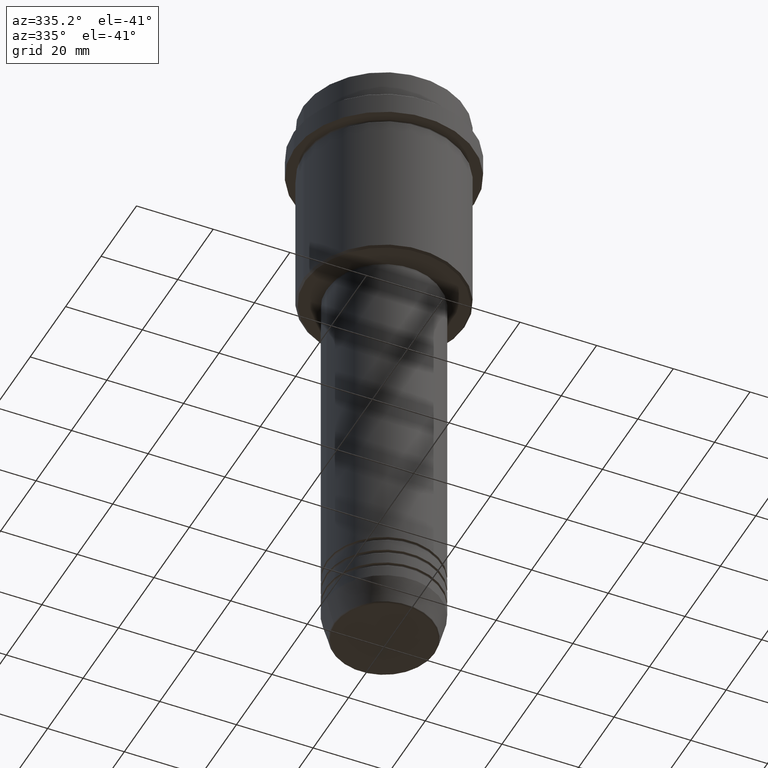
[diagram: clean part render]
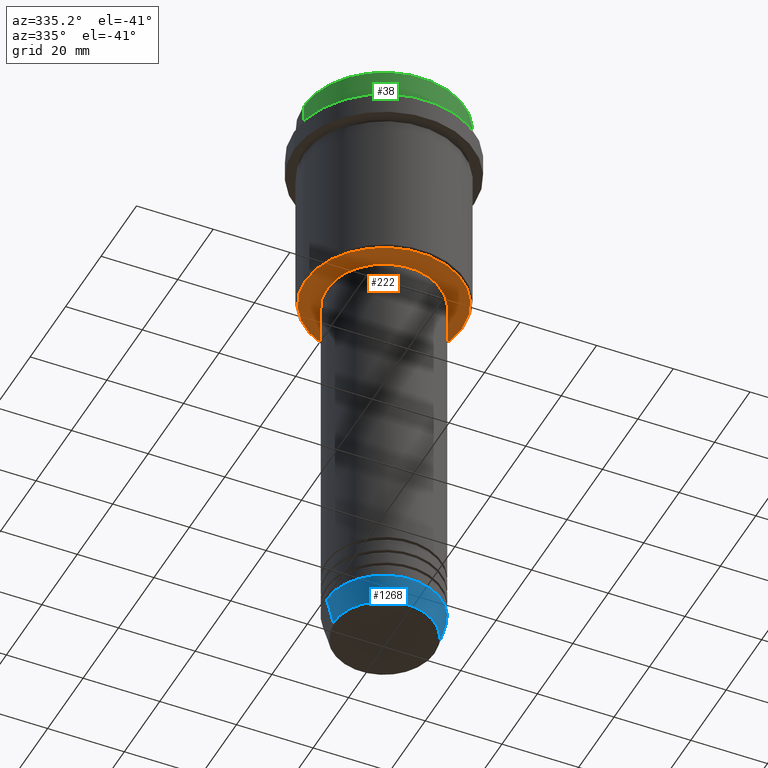
[diagram: same view with three faces highlighted in distinct colors, each labeled with its STEP entity id]
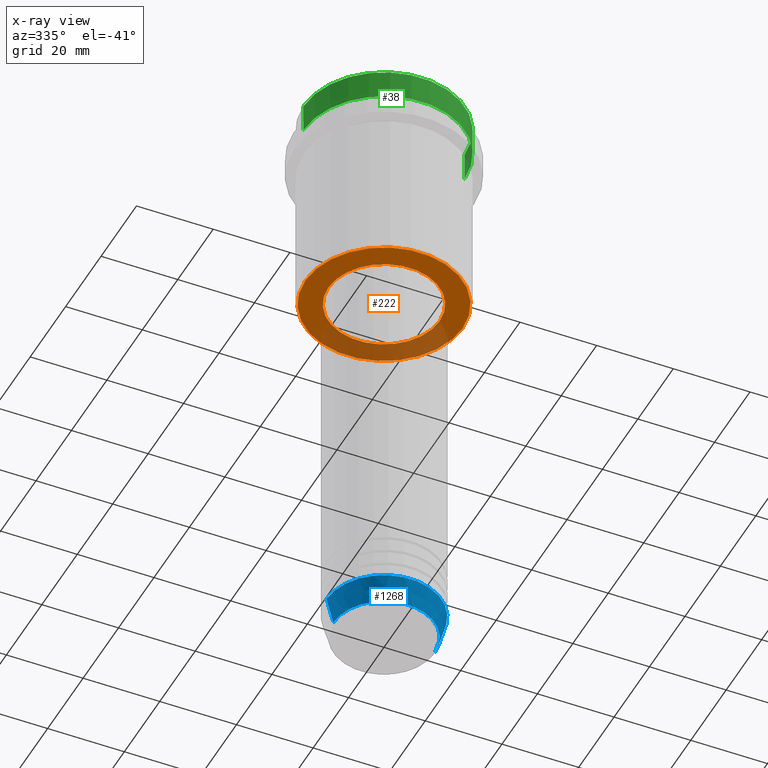
[diagram: x-ray of the same camera — body ghosted, the three highlighted faces saturated]
A machine part, auxiliary view with three faces highlighted in distinct colors.
The next image is the same camera in x-ray (body ghosted, the three faces saturated) — at least one of them is partly hidden behind the body in this view.
Their STEP definitions:

[orange] entity #222 — the highlighted planar face has unit normal (0, 0, -1).
#44 = CARTESIAN_POINT ( 'NONE',  ( 20.50000000000003197, 0.000000000000000000, -54.99999999999999289 ) ) ;
#108 = DIRECTION ( 'NONE',  ( -1.000000000000000000, 0.000000000000000000, 0.000000000000000000 ) ) ;
#132 = FACE_OUTER_BOUND ( 'NONE', #1359, .T. ) ;
#144 = FACE_BOUND ( 'NONE', #1095, .T. ) ;
#156 = EDGE_CURVE ( 'NONE', #475, #1151, #294, .T. ) ;
#207 = CIRCLE ( 'NONE', #748, 20.50000000000003197 ) ;
#222 = ADVANCED_FACE ( 'NONE', ( #132, #144 ), #568, .T. ) ;
#246 = DIRECTION ( 'NONE',  ( 1.000000000000000000, 0.000000000000000000, 0.000000000000000000 ) ) ;
#294 = CIRCLE ( 'NONE', #425, 20.50000000000003197 ) ;
#306 = ORIENTED_EDGE ( 'NONE', *, *, #1391, .T. ) ;
#415 = ORIENTED_EDGE ( 'NONE', *, *, #156, .T. ) ;
#425 = AXIS2_PLACEMENT_3D ( 'NONE', #976, #654, #988 ) ;
#437 = CARTESIAN_POINT ( 'NONE',  ( 0.000000000000000000, 0.000000000000000000, -54.99999999999999289 ) ) ;
#475 = VERTEX_POINT ( 'NONE', #1321 ) ;
#479 = CIRCLE ( 'NONE', #776, 14.49999999999999467 ) ;
#490 = ORIENTED_EDGE ( 'NONE', *, *, #539, .T. ) ;
#514 = ORIENTED_EDGE ( 'NONE', *, *, #1366, .T. ) ;
#539 = EDGE_CURVE ( 'NONE', #1151, #475, #207, .T. ) ;
#568 = PLANE ( 'NONE',  #1324 ) ;
#654 = DIRECTION ( 'NONE',  ( 0.000000000000000000, 0.000000000000000000, -1.000000000000000000 ) ) ;
#661 = DIRECTION ( 'NONE',  ( 0.000000000000000000, 0.000000000000000000, -1.000000000000000000 ) ) ;
#665 = AXIS2_PLACEMENT_3D ( 'NONE', #755, #871, #246 ) ;
#748 = AXIS2_PLACEMENT_3D ( 'NONE', #437, #661, #108 ) ;
#755 = CARTESIAN_POINT ( 'NONE',  ( 0.000000000000000000, 0.000000000000000000, -54.99999999999999289 ) ) ;
#776 = AXIS2_PLACEMENT_3D ( 'NONE', #781, #861, #1310 ) ;
#781 = CARTESIAN_POINT ( 'NONE',  ( 0.000000000000000000, 0.000000000000000000, -54.99999999999999289 ) ) ;
#812 = VERTEX_POINT ( 'NONE', #1396 ) ;
#861 = DIRECTION ( 'NONE',  ( -0.000000000000000000, -0.000000000000000000, 1.000000000000000000 ) ) ;
#871 = DIRECTION ( 'NONE',  ( -0.000000000000000000, -0.000000000000000000, 1.000000000000000000 ) ) ;
#942 = VERTEX_POINT ( 'NONE', #1006 ) ;
#976 = CARTESIAN_POINT ( 'NONE',  ( 0.000000000000000000, 0.000000000000000000, -54.99999999999999289 ) ) ;
#988 = DIRECTION ( 'NONE',  ( -1.000000000000000000, 0.000000000000000000, 0.000000000000000000 ) ) ;
#1006 = CARTESIAN_POINT ( 'NONE',  ( 14.49999999999999467, 0.000000000000000000, -54.99999999999999289 ) ) ;
#1095 = EDGE_LOOP ( 'NONE', ( #306, #514 ) ) ;
#1148 = DIRECTION ( 'NONE',  ( 0.000000000000000000, 0.000000000000000000, -1.000000000000000000 ) ) ;
#1151 = VERTEX_POINT ( 'NONE', #44 ) ;
#1227 = DIRECTION ( 'NONE',  ( -1.000000000000000000, 0.000000000000000000, -0.000000000000000000 ) ) ;
#1285 = CIRCLE ( 'NONE', #665, 14.49999999999999467 ) ;
#1310 = DIRECTION ( 'NONE',  ( 1.000000000000000000, 0.000000000000000000, 0.000000000000000000 ) ) ;
#1321 = CARTESIAN_POINT ( 'NONE',  ( -20.50000000000003197, 2.541142108230759846E-15, -54.99999999999999289 ) ) ;
#1324 = AXIS2_PLACEMENT_3D ( 'NONE', #1355, #1148, #1227 ) ;
#1355 = CARTESIAN_POINT ( 'NONE',  ( 0.000000000000000000, 21.00000000000000000, -54.99999999999999289 ) ) ;
#1359 = EDGE_LOOP ( 'NONE', ( #490, #415 ) ) ;
#1366 = EDGE_CURVE ( 'NONE', #812, #942, #479, .T. ) ;
#1391 = EDGE_CURVE ( 'NONE', #942, #812, #1285, .T. ) ;
#1396 = CARTESIAN_POINT ( 'NONE',  ( -14.49999999999999467, 1.775737858763661620E-15, -54.99999999999999289 ) ) ;

[blue] entity #1268 — the highlighted conical surface has half-angle 15 deg.
#93 = CARTESIAN_POINT ( 'NONE',  ( 0.000000000000000000, 0.000000000000000000, -153.0000000000000000 ) ) ;
#107 = CARTESIAN_POINT ( 'NONE',  ( 15.00000000000000000, 0.000000000000000000, -153.0000000000000000 ) ) ;
#112 = CIRCLE ( 'NONE', #747, 13.22365507213719305 ) ;
#177 = DIRECTION ( 'NONE',  ( -0.000000000000000000, -0.000000000000000000, 1.000000000000000000 ) ) ;
#186 = VECTOR ( 'NONE', #537, 1000.000000000000000 ) ;
#247 = ORIENTED_EDGE ( 'NONE', *, *, #266, .F. ) ;
#266 = EDGE_CURVE ( 'NONE', #702, #509, #481, .T. ) ;
#312 = FACE_OUTER_BOUND ( 'NONE', #1385, .T. ) ;
#379 = EDGE_CURVE ( 'NONE', #702, #712, #112, .T. ) ;
#440 = VERTEX_POINT ( 'NONE', #1071 ) ;
#453 = CONICAL_SURFACE ( 'NONE', #941, 15.00000000000000000, 0.2617993877991500740 ) ;
#461 = ORIENTED_EDGE ( 'NONE', *, *, #379, .T. ) ;
#481 = LINE ( 'NONE', #683, #1191 ) ;
#509 = VERTEX_POINT ( 'NONE', #758 ) ;
#537 = DIRECTION ( 'NONE',  ( 0.2588190451025213501, 0.000000000000000000, 0.9659258262890680902 ) ) ;
#683 = CARTESIAN_POINT ( 'NONE',  ( -15.00000000000000000, 1.836970198721029589E-15, -153.0000000000000000 ) ) ;
#702 = VERTEX_POINT ( 'NONE', #1138 ) ;
#712 = VERTEX_POINT ( 'NONE', #1130 ) ;
#724 = ORIENTED_EDGE ( 'NONE', *, *, #848, .F. ) ;
#747 = AXIS2_PLACEMENT_3D ( 'NONE', #1378, #177, #1182 ) ;
#758 = CARTESIAN_POINT ( 'NONE',  ( -15.00000000000000000, 1.836970198721029589E-15, -153.0000000000000000 ) ) ;
#835 = ORIENTED_EDGE ( 'NONE', *, *, #943, .T. ) ;
#841 = CARTESIAN_POINT ( 'NONE',  ( 0.000000000000000000, 0.000000000000000000, -153.0000000000000000 ) ) ;
#848 = EDGE_CURVE ( 'NONE', #509, #440, #1035, .T. ) ;
#880 = LINE ( 'NONE', #107, #186 ) ;
#916 = DIRECTION ( 'NONE',  ( -0.2588190451025213501, 3.169619151431772337E-17, 0.9659258262890680902 ) ) ;
#941 = AXIS2_PLACEMENT_3D ( 'NONE', #93, #947, #1190 ) ;
#943 = EDGE_CURVE ( 'NONE', #712, #440, #880, .T. ) ;
#947 = DIRECTION ( 'NONE',  ( -0.000000000000000000, -0.000000000000000000, 1.000000000000000000 ) ) ;
#953 = DIRECTION ( 'NONE',  ( -0.000000000000000000, -0.000000000000000000, 1.000000000000000000 ) ) ;
#1035 = CIRCLE ( 'NONE', #1076, 15.00000000000000000 ) ;
#1071 = CARTESIAN_POINT ( 'NONE',  ( 15.00000000000000000, 0.000000000000000000, -153.0000000000000000 ) ) ;
#1076 = AXIS2_PLACEMENT_3D ( 'NONE', #841, #953, #1386 ) ;
#1130 = CARTESIAN_POINT ( 'NONE',  ( 13.22365507213719305, 0.000000000000000000, -159.6294095225512137 ) ) ;
#1138 = CARTESIAN_POINT ( 'NONE',  ( -13.22365507213719305, 1.728200442216588583E-15, -159.6294095225512137 ) ) ;
#1182 = DIRECTION ( 'NONE',  ( 1.000000000000000000, 0.000000000000000000, 0.000000000000000000 ) ) ;
#1190 = DIRECTION ( 'NONE',  ( 1.000000000000000000, 0.000000000000000000, 0.000000000000000000 ) ) ;
#1191 = VECTOR ( 'NONE', #916, 1000.000000000000000 ) ;
#1268 = ADVANCED_FACE ( 'NONE', ( #312 ), #453, .T. ) ;
#1378 = CARTESIAN_POINT ( 'NONE',  ( 0.000000000000000000, 0.000000000000000000, -159.6294095225512137 ) ) ;
#1385 = EDGE_LOOP ( 'NONE', ( #247, #461, #835, #724 ) ) ;
#1386 = DIRECTION ( 'NONE',  ( 1.000000000000000000, 0.000000000000000000, 0.000000000000000000 ) ) ;

[green] entity #38 — the highlighted cylindrical surface (partial cylindrical patch) has radius 21 mm, axis along (-0, -0, 1).
#7 = ORIENTED_EDGE ( 'NONE', *, *, #1030, .T. ) ;
#33 = DIRECTION ( 'NONE',  ( 1.000000000000000000, 0.000000000000000000, 0.000000000000000000 ) ) ;
#38 = ADVANCED_FACE ( 'NONE', ( #870 ), #754, .T. ) ;
#78 = DIRECTION ( 'NONE',  ( -0.000000000000000000, -0.000000000000000000, 1.000000000000000000 ) ) ;
#152 = DIRECTION ( 'NONE',  ( -0.000000000000000000, -0.000000000000000000, 1.000000000000000000 ) ) ;
#176 = EDGE_CURVE ( 'NONE', #1070, #1281, #745, .T. ) ;
#202 = CARTESIAN_POINT ( 'NONE',  ( -21.00000000000000000, 2.571758278209441661E-15, 0.000000000000000000 ) ) ;
#240 = DIRECTION ( 'NONE',  ( 0.000000000000000000, 0.000000000000000000, -1.000000000000000000 ) ) ;
#250 = VERTEX_POINT ( 'NONE', #1139 ) ;
#342 = VECTOR ( 'NONE', #992, 1000.000000000000000 ) ;
#392 = CARTESIAN_POINT ( 'NONE',  ( 21.00000000000000000, 0.000000000000000000, -7.999999999999998224 ) ) ;
#411 = LINE ( 'NONE', #202, #1036 ) ;
#476 = CARTESIAN_POINT ( 'NONE',  ( -21.00000000000000000, 2.571758278209441661E-15, -7.999999999999998224 ) ) ;
#482 = ORIENTED_EDGE ( 'NONE', *, *, #176, .T. ) ;
#488 = CARTESIAN_POINT ( 'NONE',  ( 0.000000000000000000, 0.000000000000000000, -7.999999999999998224 ) ) ;
#554 = DIRECTION ( 'NONE',  ( -0.000000000000000000, -0.000000000000000000, 1.000000000000000000 ) ) ;
#588 = EDGE_CURVE ( 'NONE', #1281, #1135, #653, .T. ) ;
#641 = CARTESIAN_POINT ( 'NONE',  ( 0.000000000000000000, 0.000000000000000000, 0.000000000000000000 ) ) ;
#653 = LINE ( 'NONE', #1196, #342 ) ;
#732 = CIRCLE ( 'NONE', #1194, 21.00000000000000000 ) ;
#745 = CIRCLE ( 'NONE', #1120, 21.00000000000000000 ) ;
#754 = CYLINDRICAL_SURFACE ( 'NONE', #839, 21.00000000000000000 ) ;
#757 = CARTESIAN_POINT ( 'NONE',  ( 0.000000000000000000, 0.000000000000000000, -0.4999999999999970024 ) ) ;
#839 = AXIS2_PLACEMENT_3D ( 'NONE', #641, #554, #1298 ) ;
#870 = FACE_OUTER_BOUND ( 'NONE', #1170, .T. ) ;
#946 = ORIENTED_EDGE ( 'NONE', *, *, #1198, .F. ) ;
#992 = DIRECTION ( 'NONE',  ( -0.000000000000000000, -0.000000000000000000, 1.000000000000000000 ) ) ;
#1030 = EDGE_CURVE ( 'NONE', #1135, #250, #732, .T. ) ;
#1036 = VECTOR ( 'NONE', #78, 1000.000000000000000 ) ;
#1070 = VERTEX_POINT ( 'NONE', #476 ) ;
#1113 = DIRECTION ( 'NONE',  ( 1.000000000000000000, 0.000000000000000000, 0.000000000000000000 ) ) ;
#1120 = AXIS2_PLACEMENT_3D ( 'NONE', #488, #152, #33 ) ;
#1135 = VERTEX_POINT ( 'NONE', #1152 ) ;
#1139 = CARTESIAN_POINT ( 'NONE',  ( -21.00000000000000000, 2.571758278209441661E-15, -0.4999999999999970024 ) ) ;
#1152 = CARTESIAN_POINT ( 'NONE',  ( 21.00000000000000000, 0.000000000000000000, -0.4999999999999970024 ) ) ;
#1159 = ORIENTED_EDGE ( 'NONE', *, *, #588, .T. ) ;
#1170 = EDGE_LOOP ( 'NONE', ( #946, #482, #1159, #7 ) ) ;
#1194 = AXIS2_PLACEMENT_3D ( 'NONE', #757, #240, #1113 ) ;
#1196 = CARTESIAN_POINT ( 'NONE',  ( 21.00000000000000000, 0.000000000000000000, 0.000000000000000000 ) ) ;
#1198 = EDGE_CURVE ( 'NONE', #1070, #250, #411, .T. ) ;
#1281 = VERTEX_POINT ( 'NONE', #392 ) ;
#1298 = DIRECTION ( 'NONE',  ( 1.000000000000000000, 0.000000000000000000, 0.000000000000000000 ) ) ;